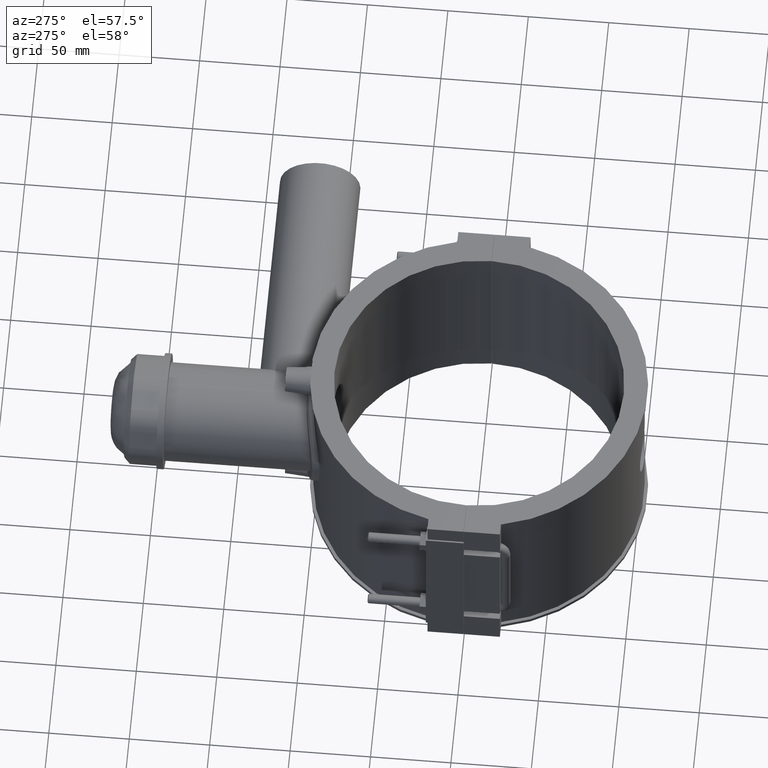
[diagram: clean part render]
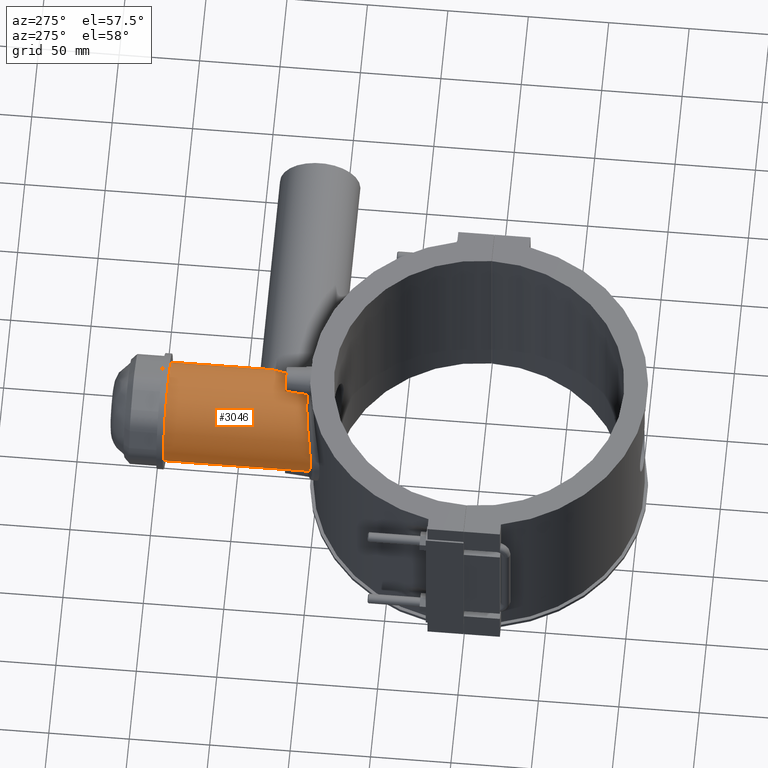
[diagram: same view with one face highlighted and labeled with its STEP entity id]
A machine part, auxiliary view. The second image highlights one B-rep face of the part: STEP entity #3046.
In plain terms, the highlighted cylindrical surface (bore or boss wall) has radius 30.6 mm, axis along (0, 1, 0).
Its self-contained STEP definition (entity closure, byte-faithful):
#738=CIRCLE('',#3259,30.6);
#819=FACE_BOUND('',#1093,.T.);
#904=FACE_OUTER_BOUND('',#1092,.T.);
#1092=EDGE_LOOP('',(#2246,#2247));
#1093=EDGE_LOOP('',(#2248));
#1285=B_SPLINE_CURVE_WITH_KNOTS('',3,(#4521,#4522,#4523,#4524,#4525,#4526,
#4527,#4528,#4529,#4530,#4531,#4532,#4533,#4534,#4535,#4536,#4537,#4538,
#4539,#4540,#4541,#4542,#4543,#4544,#4545,#4546,#4547,#4548,#4549,#4550,
#4551,#4552,#4553,#4554,#4555,#4556,#4557,#4558,#4559,#4560,#4561,#4562,
#4563),.UNSPECIFIED.,.F.,.F.,(4,2,2,2,2,2,2,2,2,2,2,2,2,2,2,2,2,2,3,2,4),
(-9.07882718135008,-8.63333325207762,-8.11683467223829,-7.60033609239895,
-7.08383751255962,-6.56733893272028,-6.05084035288094,-5.55273459869049,
-5.05462884450004,-4.55652309030959,-4.05841733611914,-3.56031158192869,
-3.06220582773825,-2.5641000735478,-2.06599431935735,-1.54949573951801,
-1.03299715967867,-0.516498579839336,0.,0.516498579839337,0.961992509111792),
 .UNSPECIFIED.);
#1286=B_SPLINE_CURVE_WITH_KNOTS('',3,(#4765,#4766,#4767,#4768,#4769,#4770,
#4771,#4772,#4773,#4774,#4775,#4776,#4777,#4778,#4779,#4780,#4781,#4782,
#4783,#4784,#4785,#4786,#4787,#4788,#4789,#4790,#4791,#4792,#4793,#4794,
#4795,#4796,#4797,#4798,#4799,#4800,#4801,#4802,#4803,#4804,#4805,#4806,
#4807,#4808,#4809,#4810,#4811,#4812,#4813,#4814),.UNSPECIFIED.,.F.,.F.,
(4,2,2,2,2,2,2,2,2,2,2,2,2,2,2,2,2,2,2,2,2,2,2,2,4),(2.55808407585376,2.8995108683,
3.47929852501433,4.05908618172865,4.63887383844297,5.21866149515729,5.79844915187161,
6.37823680858594,6.95802446530026,7.53795526819668,8.1178860710931,8.69781687398952,
9.27774767688594,9.85767847978236,10.4376092826788,11.0175400855752,11.5974708884716,
12.1772585451859,12.7570462019003,13.3368338586146,13.9166215153289,14.4964091720432,
15.0761968287576,15.6559844854719,15.9974112779181),.UNSPECIFIED.);
#1336=VERTEX_POINT('',#4452);
#1342=VERTEX_POINT('',#4516);
#1394=VERTEX_POINT('',#4815);
#1636=EDGE_CURVE('',#1336,#1342,#1285,.T.);
#1721=EDGE_CURVE('',#1336,#1342,#1286,.T.);
#1722=EDGE_CURVE('',#1394,#1394,#738,.T.);
#2246=ORIENTED_EDGE('',*,*,#1721,.F.);
#2247=ORIENTED_EDGE('',*,*,#1636,.T.);
#2248=ORIENTED_EDGE('',*,*,#1722,.F.);
#2969=CYLINDRICAL_SURFACE('',#3258,30.6);
#3046=ADVANCED_FACE('',(#904,#819),#2969,.T.);
#3258=AXIS2_PLACEMENT_3D('',#4764,#3665,#3666);
#3259=AXIS2_PLACEMENT_3D('',#4816,#3667,#3668);
#3665=DIRECTION('center_axis',(0.,1.,3.06161699786838E-16));
#3666=DIRECTION('ref_axis',(0.,0.,1.));
#3667=DIRECTION('center_axis',(0.,1.,3.06161699786838E-16));
#3668=DIRECTION('ref_axis',(1.,0.,0.));
#4452=CARTESIAN_POINT('',(19.8835697729998,104.83504790423,23.25948522823));
#4516=CARTESIAN_POINT('',(19.8835697729998,104.83504790423,-23.25948522823));
#4521=CARTESIAN_POINT('Ctrl Pts',(19.8835697729998,104.83504790423,23.25948522823));
#4522=CARTESIAN_POINT('Ctrl Pts',(19.2766643708062,106.151742828986,23.7783034992156));
#4523=CARTESIAN_POINT('Ctrl Pts',(18.7465473323232,107.525198698735,24.1901756553827));
#4524=CARTESIAN_POINT('Ctrl Pts',(17.9043339506845,110.580656833605,24.8216488174023));
#4525=CARTESIAN_POINT('Ctrl Pts',(17.6453960000902,112.278338067202,25.));
#4526=CARTESIAN_POINT('Ctrl Pts',(17.6453960000902,115.721661932798,25.));
#4527=CARTESIAN_POINT('Ctrl Pts',(17.9043339506845,117.419343166395,24.8216488174023));
#4528=CARTESIAN_POINT('Ctrl Pts',(18.8087110875496,120.700324613695,24.1435666321451));
#4529=CARTESIAN_POINT('Ctrl Pts',(19.4491465104591,122.285016438421,23.6439053932152));
#4530=CARTESIAN_POINT('Ctrl Pts',(20.9095930159152,125.295276106832,22.3627478630509));
#4531=CARTESIAN_POINT('Ctrl Pts',(21.7290170781198,126.722518877908,21.5800214015293));
#4532=CARTESIAN_POINT('Ctrl Pts',(23.3776041358606,129.36960239019,19.7821923044427));
#4533=CARTESIAN_POINT('Ctrl Pts',(24.2066765989964,130.588993835109,18.766345224218));
#4534=CARTESIAN_POINT('Ctrl Pts',(25.7202641563971,132.727576826744,16.6277622325837));
#4535=CARTESIAN_POINT('Ctrl Pts',(26.4655478378992,133.733461294011,15.4320705950653));
#4536=CARTESIAN_POINT('Ctrl Pts',(27.8379513570982,135.539169162758,12.7915006739807));
#4537=CARTESIAN_POINT('Ctrl Pts',(28.4645948092368,136.339013666623,11.3463892520938));
#4538=CARTESIAN_POINT('Ctrl Pts',(29.5017254590385,137.64635667487,8.28383526409027));
#4539=CARTESIAN_POINT('Ctrl Pts',(29.9129488161225,138.154992300218,6.66278751453463));
#4540=CARTESIAN_POINT('Ctrl Pts',(30.4622285480436,138.831965573838,3.35110075354027));
#4541=CARTESIAN_POINT('Ctrl Pts',(30.6,139.,1.66035251396817));
#4542=CARTESIAN_POINT('Ctrl Pts',(30.6,139.,-1.66035251396816));
#4543=CARTESIAN_POINT('Ctrl Pts',(30.4622285480435,138.831965573838,-3.35110075354025));
#4544=CARTESIAN_POINT('Ctrl Pts',(29.9129488161225,138.154992300218,-6.66278751453461));
#4545=CARTESIAN_POINT('Ctrl Pts',(29.5017254590385,137.64635667487,-8.28383526409025));
#4546=CARTESIAN_POINT('Ctrl Pts',(28.4645948092368,136.339013666623,-11.3463892520937));
#4547=CARTESIAN_POINT('Ctrl Pts',(27.8379513570982,135.539169162758,-12.7915006739807));
#4548=CARTESIAN_POINT('Ctrl Pts',(26.4655478378992,133.733461294012,-15.4320705950653));
#4549=CARTESIAN_POINT('Ctrl Pts',(25.7202641563971,132.727576826744,-16.6277622325837));
#4550=CARTESIAN_POINT('Ctrl Pts',(24.2066765989964,130.588993835109,-18.766345224218));
#4551=CARTESIAN_POINT('Ctrl Pts',(23.3776041358606,129.36960239019,-19.7821923044427));
#4552=CARTESIAN_POINT('Ctrl Pts',(21.7290170781198,126.722518877908,-21.5800214015293));
#4553=CARTESIAN_POINT('Ctrl Pts',(20.9095930159152,125.295276106832,-22.3627478630509));
#4554=CARTESIAN_POINT('Ctrl Pts',(19.4491465104591,122.285016438421,-23.6439053932152));
#4555=CARTESIAN_POINT('Ctrl Pts',(18.8087110875496,120.700324613695,-24.1435666321451));
#4556=CARTESIAN_POINT('Ctrl Pts',(17.9043339506845,117.419343166395,-24.8216488174023));
#4557=CARTESIAN_POINT('Ctrl Pts',(17.6453960000902,115.721661932798,-25.));
#4558=CARTESIAN_POINT('Ctrl Pts',(17.6453960000902,114.,-25.));
#4559=CARTESIAN_POINT('Ctrl Pts',(17.6453960000902,112.278338067202,-25.));
#4560=CARTESIAN_POINT('Ctrl Pts',(17.9043339506845,110.580656833605,-24.8216488174023));
#4561=CARTESIAN_POINT('Ctrl Pts',(18.7465473323232,107.525198698735,-24.1901756553827));
#4562=CARTESIAN_POINT('Ctrl Pts',(19.2766643708062,106.151742828986,-23.7783034992156));
#4563=CARTESIAN_POINT('Ctrl Pts',(19.8835697729998,104.83504790423,-23.25948522823));
#4764=CARTESIAN_POINT('Origin',(0.,142.2,1.5981640728873E-14));
#4765=CARTESIAN_POINT('Ctrl Pts',(19.8835697729998,104.83504790423,23.25948522823));
#4766=CARTESIAN_POINT('Ctrl Pts',(19.0060458456852,105.001483734471,24.009644058704));
#4767=CARTESIAN_POINT('Ctrl Pts',(18.0725010908575,105.167084039853,24.7213025445419));
#4768=CARTESIAN_POINT('Ctrl Pts',(15.4262471790319,105.596502709904,26.5032548378288));
#4769=CARTESIAN_POINT('Ctrl Pts',(13.6234156684582,105.847703593396,27.475834137547));
#4770=CARTESIAN_POINT('Ctrl Pts',(9.85686130471451,106.264651202978,29.0406819729061));
#4771=CARTESIAN_POINT('Ctrl Pts',(7.88993884661287,106.430395565395,29.6341934079132));
#4772=CARTESIAN_POINT('Ctrl Pts',(3.92784477748027,106.650139571473,30.41395385921));
#4773=CARTESIAN_POINT('Ctrl Pts',(1.93262552238107,106.704,30.6));
#4774=CARTESIAN_POINT('Ctrl Pts',(-1.93262552238107,106.704,30.6));
#4775=CARTESIAN_POINT('Ctrl Pts',(-3.92784477748027,106.650139571473,30.41395385921));
#4776=CARTESIAN_POINT('Ctrl Pts',(-7.88993884661287,106.430395565395,29.6341934079132));
#4777=CARTESIAN_POINT('Ctrl Pts',(-9.85686130471451,106.264651202978,29.0406819729061));
#4778=CARTESIAN_POINT('Ctrl Pts',(-13.6234156684582,105.847703593396,27.475834137547));
#4779=CARTESIAN_POINT('Ctrl Pts',(-15.4262471790319,105.596502709904,26.5032548378288));
#4780=CARTESIAN_POINT('Ctrl Pts',(-18.7572095971888,105.055973531958,24.2602289160296));
#4781=CARTESIAN_POINT('Ctrl Pts',(-20.2853141722367,104.767153095376,22.98962083638));
#4782=CARTESIAN_POINT('Ctrl Pts',(-22.9899546751309,104.207069167333,20.2849803334858));
#4783=CARTESIAN_POINT('Ctrl Pts',(-24.2606015899069,103.915830756304,18.7567190480679));
#4784=CARTESIAN_POINT('Ctrl Pts',(-26.5034801784178,103.366542990763,15.4258496415267));
#4785=CARTESIAN_POINT('Ctrl Pts',(-27.4758884435353,103.109055599237,13.6232677839844));
#4786=CARTESIAN_POINT('Ctrl Pts',(-29.0405456802427,102.679348199261,9.85720652836413));
#4787=CARTESIAN_POINT('Ctrl Pts',(-29.634036869428,102.507231846384,7.89051991546594));
#4788=CARTESIAN_POINT('Ctrl Pts',(-30.41386816503,102.278567380449,3.92849446699046));
#4789=CARTESIAN_POINT('Ctrl Pts',(-30.6,102.222226624155,1.93310267632141));
#4790=CARTESIAN_POINT('Ctrl Pts',(-30.6,102.222226624155,-1.93310267632139));
#4791=CARTESIAN_POINT('Ctrl Pts',(-30.41386816503,102.278567380449,-3.92849446699044));
#4792=CARTESIAN_POINT('Ctrl Pts',(-29.634036869428,102.507231846384,-7.89051991546592));
#4793=CARTESIAN_POINT('Ctrl Pts',(-29.0405456802427,102.679348199261,-9.85720652836411));
#4794=CARTESIAN_POINT('Ctrl Pts',(-27.4758884435353,103.109055599237,-13.6232677839844));
#4795=CARTESIAN_POINT('Ctrl Pts',(-26.5034801784178,103.366542990763,-15.4258496415267));
#4796=CARTESIAN_POINT('Ctrl Pts',(-24.2606015899069,103.915830756304,-18.7567190480678));
#4797=CARTESIAN_POINT('Ctrl Pts',(-22.9899546751309,104.207069167333,-20.2849803334858));
#4798=CARTESIAN_POINT('Ctrl Pts',(-20.2853141722367,104.767153095376,-22.98962083638));
#4799=CARTESIAN_POINT('Ctrl Pts',(-18.7572095971888,105.055973531958,-24.2602289160296));
#4800=CARTESIAN_POINT('Ctrl Pts',(-15.4262471790319,105.596502709904,-26.5032548378288));
#4801=CARTESIAN_POINT('Ctrl Pts',(-13.6234156684582,105.847703593396,-27.475834137547));
#4802=CARTESIAN_POINT('Ctrl Pts',(-9.85686130471452,106.264651202978,-29.0406819729061));
#4803=CARTESIAN_POINT('Ctrl Pts',(-7.88993884661287,106.430395565395,-29.6341934079132));
#4804=CARTESIAN_POINT('Ctrl Pts',(-3.92784477748027,106.650139571473,-30.41395385921));
#4805=CARTESIAN_POINT('Ctrl Pts',(-1.93262552238108,106.704,-30.6));
#4806=CARTESIAN_POINT('Ctrl Pts',(1.93262552238107,106.704,-30.6));
#4807=CARTESIAN_POINT('Ctrl Pts',(3.92784477748027,106.650139571473,-30.41395385921));
#4808=CARTESIAN_POINT('Ctrl Pts',(7.88993884661287,106.430395565395,-29.6341934079132));
#4809=CARTESIAN_POINT('Ctrl Pts',(9.85686130471451,106.264651202978,-29.0406819729061));
#4810=CARTESIAN_POINT('Ctrl Pts',(13.6234156684582,105.847703593396,-27.475834137547));
#4811=CARTESIAN_POINT('Ctrl Pts',(15.4262471790319,105.596502709904,-26.5032548378288));
#4812=CARTESIAN_POINT('Ctrl Pts',(18.0725010908575,105.167084039853,-24.7213025445419));
#4813=CARTESIAN_POINT('Ctrl Pts',(19.0060458456852,105.001483734471,-24.009644058704));
#4814=CARTESIAN_POINT('Ctrl Pts',(19.8835697729998,104.83504790423,-23.25948522823));
#4815=CARTESIAN_POINT('',(0.,193.5,30.6000000000001));
#4816=CARTESIAN_POINT('Origin',(0.,193.5,3.16877359279378E-14));